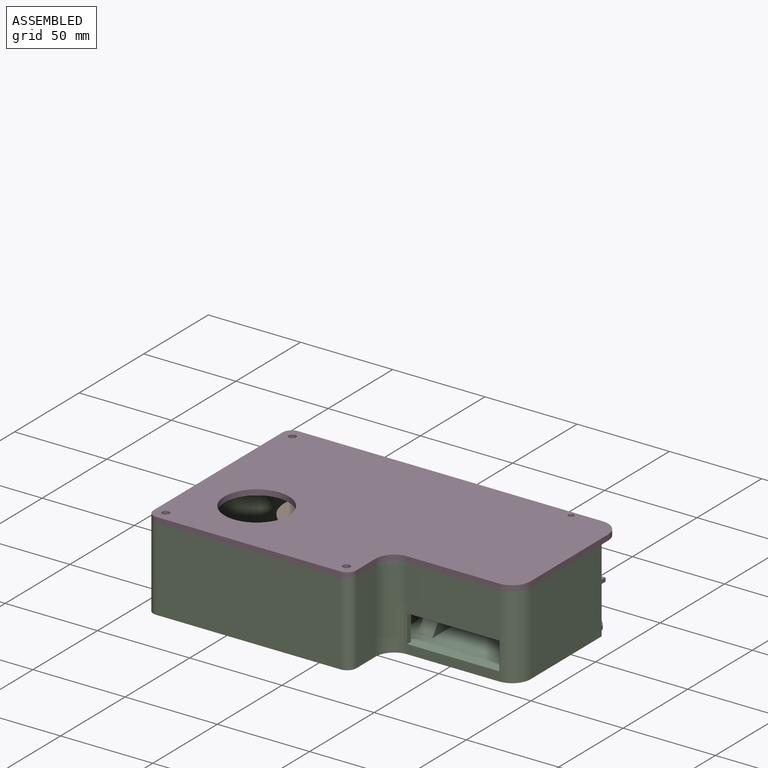
[diagram: assembled view]
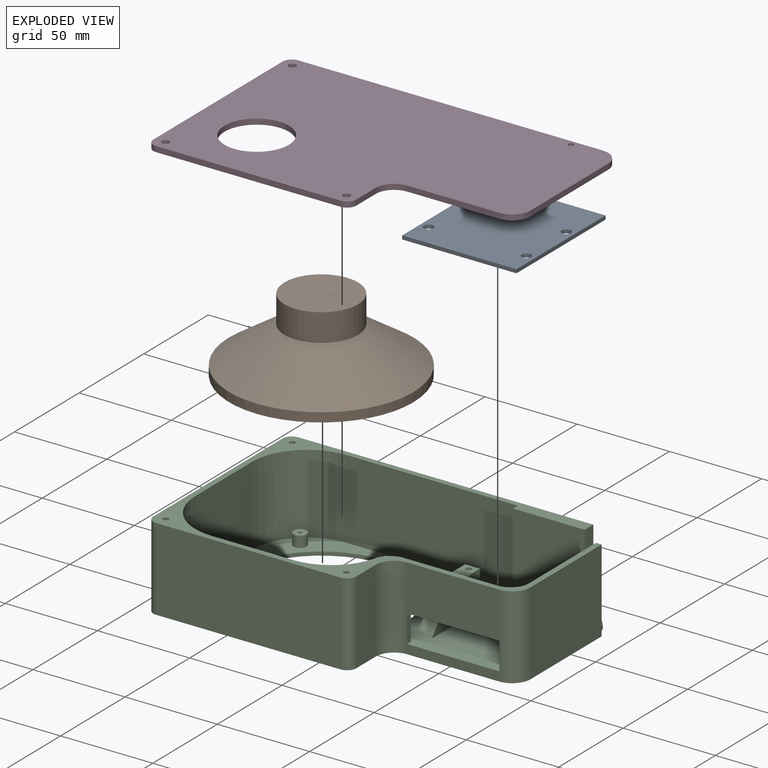
[diagram: exploded view]
GUIDED TOUR — MATED ASSEMBLY (Onshape document bf811bb87805f32e6dd0130b, AutoMate assembly bf811bb87805f32e6dd0130b_a34d25c10226012e30f8f99f_a27737cd62bdb31718ac18c3_default)

This assembly has 4 components, labeled P0..P3 below (a component is one placed occurrence of a part; the same part can appear more than once), held together by 3 mates. A mate is a constraint between two components; its type names the relative motion it leaves free:
  FASTENED — locks the two components together rigidly (no relative motion).
Axis/direction vectors are unit vectors and 'through' points are millimeter coordinates, both in the assembly's world frame.

MATES
  1. FASTENED "Fastened 2": P0 <-> P2, direction (0.000, 0.000, -1.000) through (128.85, 53.35, 10.94) mm
  2. FASTENED "Fastened 1": P1 <-> P2, direction (0.000, 0.000, -1.000) through (66.85, 27.85, -9.06) mm
  3. FASTENED "Fastened 3": P3 <-> P2, direction (0.000, 0.000, -1.000) through (16.85, 76.85, 33.94) mm

ASSEMBLY ORDER
  1. P2 — the base component [order verified]
  2. P1 [order verified]
  3. P0 [order verified]
  4. P3 [order verified]
Order-tag legend:
  [order verified] — this step's position reverses a verified removal order: the component was checked to insert without passing through the ones already placed.

Of the 4 components, 4 carry the full construction recipe — the FeatureScript program that regenerates the part's solid from scratch; the rest are supplied as boundary geometry only.
Each toured component is shown spotlighted twice — in the assembled view, then in the exploded view, where a leader line traces a displaced component back to its assembled socket (saturated green if recipe-attached, orange if geometry-only; every other component desaturated gray) — followed by its recipe or geometry summary and the mates that hold it.
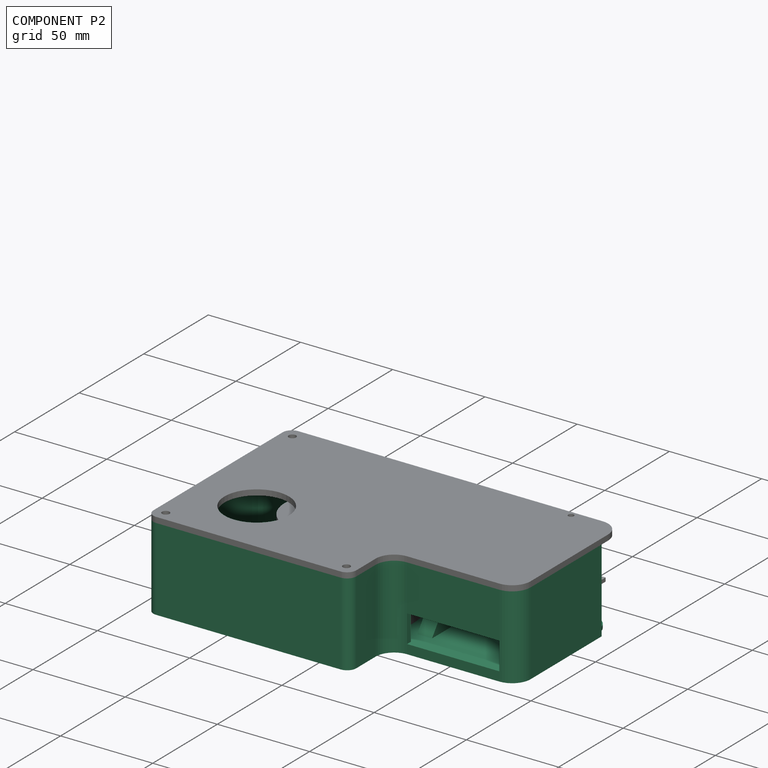
[diagram: component P2 — assembled]
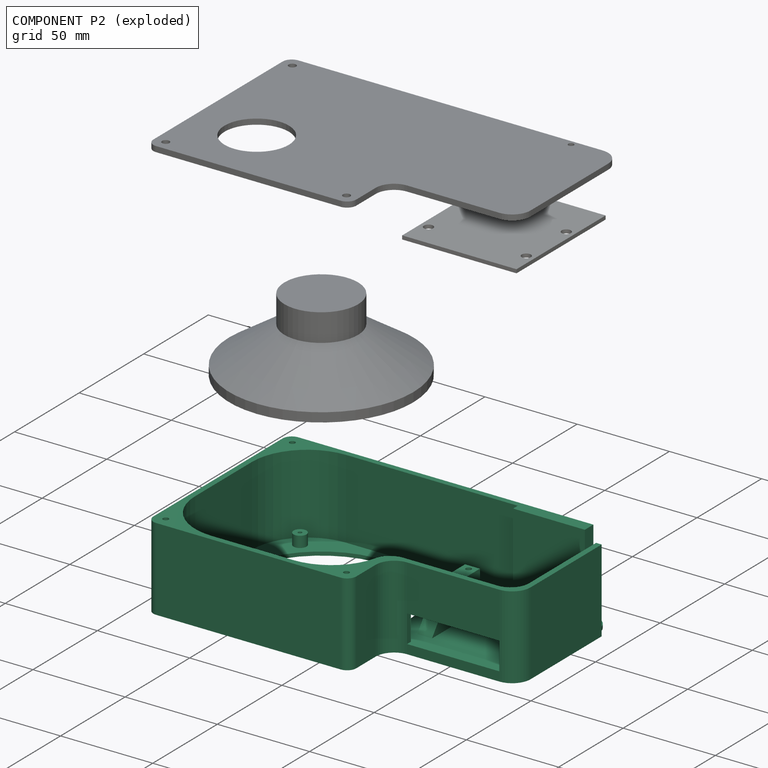
[diagram: component P2 — exploded]
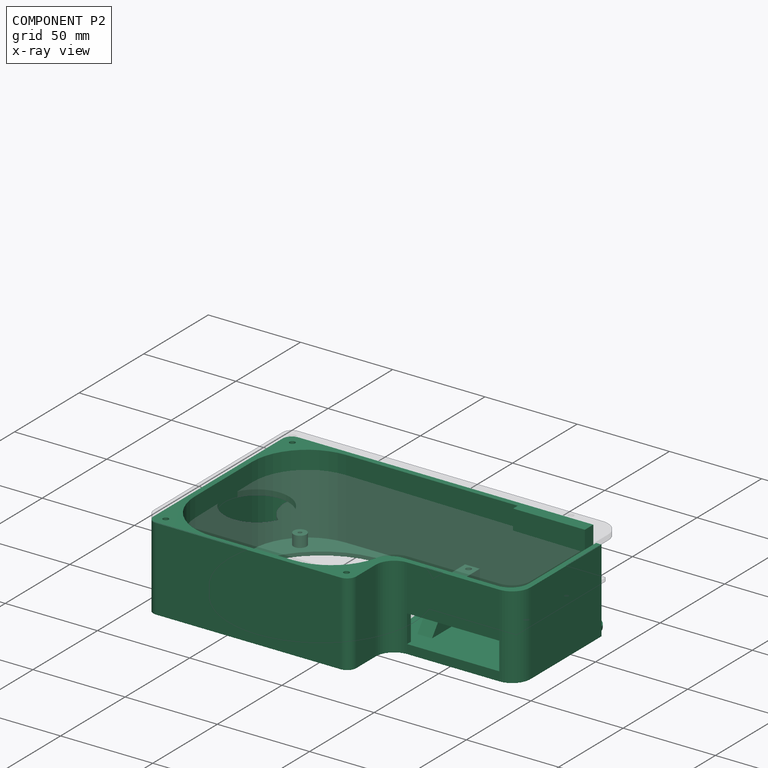
[diagram: component P2 — x-ray view]
COMPONENT P2 — recipe-attached (CADFS 00986160, mesh-verified: the recipe's output STEP matches this component's geometry to below the mesh-comparison resolution (tessellation chordal tolerance ~0.324 mm)).
Held by: FASTENED mate "Fastened 2" to P0; FASTENED mate "Fastened 1" to P1; FASTENED mate "Fastened 3" to P3.
Construction recipe (FeatureScript — the CAD program that rebuilds this solid; sketch coordinates are in the units given by the * unit suffixes, e.g. mm):

FeatureScript 1511;
import(path : "onshape/std/geometry.fs", version : "1511.0");
import(path : "onshape/std/common.fs", version : "1511.0");
const mm = millimeter;
const VERTEX = EntityType.VERTEX;
const EDGE = EntityType.EDGE;
const FACE = EntityType.FACE;
const BODY = EntityType.BODY;
function v(x, y){return vector(x, y);}
function OD(order){return orderDisambiguation(order);}
function OSD(set){return originalSetDisambiguation(set);}
function TD(topology){return topologyDisambiguation(topology);}
function TDD(query){return trueDependencyDisambiguation(query);}
function sQuery(a, b, c) {return sketchEntityQuery(a, b, c);}

annotation { "Feature Type Name" : "Feature", "Feature Type Description" : "" }
export const myFeature = defineFeature(function(context is Context, id is Id, definition is map)
    precondition{}
    {
        {
            var Q0;
            Q0=qCreatedBy(makeId("Top.planeOp"),FACE);
            var sketch = newSketch(context, id + "F0", { "sketchPlane" : qUnion([Q0])});
            skLineSegment(sketch, "E0.top", {"start": v(0, 110) * mm, "end": v(180, 110) * mm});
            skLineSegment(sketch, "E0.left", {"start": v(0, 0) * mm, "end": v(0, 110) * mm});
            skLineSegment(sketch, "E1.bottom", {"start": v(167, 83.5) * mm, "end": v(175, 83.5) * mm});
            skLineSegment(sketch, "E1.top", {"start": v(167, 46.5) * mm, "end": v(175, 46.5) * mm});
            skLineSegment(sketch, "E1.left", {"start": v(167, 83.5) * mm, "end": v(167, 46.5) * mm});
            skLineSegment(sketch, "E1.right", {"start": v(175, 83.5) * mm, "end": v(175, 46.5) * mm});
            skLineSegment(sketch, "E2.bottom", {"start": v(114, 83.5) * mm, "end": v(122, 83.5) * mm});
            skLineSegment(sketch, "E2.top", {"start": v(114, 46.5) * mm, "end": v(122, 46.5) * mm});
            skLineSegment(sketch, "E2.left", {"start": v(114, 83.5) * mm, "end": v(114, 46.5) * mm});
            skLineSegment(sketch, "E2.right", {"start": v(122, 83.5) * mm, "end": v(122, 46.5) * mm});
            skCircle(sketch, "E3", {"center": v(118, 80.5) * mm, "radius": 1.5 * mm});
            skCircle(sketch, "E4", {"center": v(118, 65.5) * mm, "radius": 1.5 * mm});
            skCircle(sketch, "E5", {"center": v(171, 80.5) * mm, "radius": 1.5 * mm});
            skCircle(sketch, "E6", {"center": v(171, 65.5) * mm, "radius": 1.5 * mm});
            skCircle(sketch, "E7", {"center": v(56, 55) * mm, "radius": 46.5 * mm});
            skLineSegment(sketch, "E8", {"start": v(180, 110) * mm, "end": v(180, 30) * mm});
            skLineSegment(sketch, "E9", {"start": v(180, 30) * mm, "end": v(110, 30) * mm});
            skLineSegment(sketch, "E10", {"start": v(110, 30) * mm, "end": v(110, 0) * mm});
            skLineSegment(sketch, "E11", {"start": v(110, 0) * mm, "end": v(0, 0) * mm});
            skLineSegment(sketch, "E12.top", {"start": v(110, 3) * mm, "end": v(0, 3) * mm});
            skLineSegment(sketch, "E12.left", {"start": v(110, 0) * mm, "end": v(110, 3) * mm});
            skLineSegment(sketch, "E12.right", {"start": v(0, 0) * mm, "end": v(0, 3) * mm});
            skLineSegment(sketch, "E13.bottom", {"start": v(0, 110) * mm, "end": v(3, 110) * mm});
            skLineSegment(sketch, "E13.top", {"start": v(0, 3) * mm, "end": v(3, 3) * mm});
            skLineSegment(sketch, "E13.left", {"start": v(0, 110) * mm, "end": v(0, 3) * mm});
            skLineSegment(sketch, "E13.right", {"start": v(3, 110) * mm, "end": v(3, 3) * mm});
            skLineSegment(sketch, "E14.bottom", {"start": v(3, 107) * mm, "end": v(180, 107) * mm});
            skLineSegment(sketch, "E14.top", {"start": v(3, 110) * mm, "end": v(180, 110) * mm});
            skLineSegment(sketch, "E14.left", {"start": v(3, 107) * mm, "end": v(3, 110) * mm});
            skLineSegment(sketch, "E14.right", {"start": v(180, 107) * mm, "end": v(180, 110) * mm});
            skLineSegment(sketch, "E15.bottom", {"start": v(180, 107) * mm, "end": v(177, 107) * mm});
            skLineSegment(sketch, "E15.top", {"start": v(180, 30) * mm, "end": v(177, 30) * mm});
            skLineSegment(sketch, "E15.left", {"start": v(180, 107) * mm, "end": v(180, 30) * mm});
            skLineSegment(sketch, "E15.right", {"start": v(177, 107) * mm, "end": v(177, 30) * mm});
            skLineSegment(sketch, "E16.bottom", {"start": v(110, 30) * mm, "end": v(107, 30) * mm});
            skLineSegment(sketch, "E16.top", {"start": v(110, 3) * mm, "end": v(107, 3) * mm});
            skLineSegment(sketch, "E16.left", {"start": v(110, 30) * mm, "end": v(110, 3) * mm});
            skLineSegment(sketch, "E16.right", {"start": v(107, 30) * mm, "end": v(107, 3) * mm});
            skLineSegment(sketch, "E17.bottom", {"start": v(177, 30) * mm, "end": v(107, 30) * mm});
            skLineSegment(sketch, "E17.top", {"start": v(177, 33) * mm, "end": v(107, 33) * mm});
            skLineSegment(sketch, "E17.left", {"start": v(177, 30) * mm, "end": v(177, 33) * mm});
            skLineSegment(sketch, "E17.right", {"start": v(107, 30) * mm, "end": v(107, 33) * mm});
            skLineSegment(sketch, "E18.bottom", {"start": v(177, 107) * mm, "end": v(180, 107) * mm});
            skLineSegment(sketch, "E18.top", {"start": v(177, 95) * mm, "end": v(180, 95) * mm});
            skLineSegment(sketch, "E18.left", {"start": v(177, 107) * mm, "end": v(177, 95) * mm});
            skLineSegment(sketch, "E18.right", {"start": v(180, 107) * mm, "end": v(180, 95) * mm});
            skLineSegment(sketch, "E19.bottom", {"start": v(180, 110) * mm, "end": v(165, 110) * mm});
            skLineSegment(sketch, "E19.top", {"start": v(180, 107) * mm, "end": v(165, 107) * mm});
            skLineSegment(sketch, "E19.left", {"start": v(180, 110) * mm, "end": v(180, 107) * mm});
            skLineSegment(sketch, "E19.right", {"start": v(165, 110) * mm, "end": v(165, 107) * mm});
            skCircle(sketch, "E20", {"center": v(17.5, 93.5) * mm, "radius": 3.5 * mm});
            skCircle(sketch, "E21", {"center": v(94.5, 93.5) * mm, "radius": 3.5 * mm});
            skCircle(sketch, "E22", {"center": v(94.5, 16.5) * mm, "radius": 3.5 * mm});
            skCircle(sketch, "E23", {"center": v(17.5, 16.5) * mm, "radius": 3.5 * mm});
            skLineSegment(sketch, "E24", {"start": v(56, 55) * mm, "end": v(106.17, 55) * mm, "construction": true});
            skLineSegment(sketch, "E25", {"start": v(56, 55) * mm, "end": v(4.12, 55) * mm, "construction": true});
            skLineSegment(sketch, "E26", {"start": v(56, 55) * mm, "end": v(56, 105.52) * mm, "construction": true});
            skLineSegment(sketch, "E27", {"start": v(56, 55) * mm, "end": v(56, 5.78) * mm, "construction": true});
            skCircle(sketch, "E28", {"center": v(94.5, 93.5) * mm, "radius": 1 * mm});
            skCircle(sketch, "E29", {"center": v(17.5, 93.5) * mm, "radius": 1 * mm});
            skCircle(sketch, "E30", {"center": v(17.5, 16.5) * mm, "radius": 1 * mm});
            skCircle(sketch, "E31", {"center": v(94.5, 16.5) * mm, "radius": 1 * mm});
            skCircle(sketch, "E32", {"center": v(107, 97) * mm, "radius": 5 * mm});
            skLineSegment(sketch, "E33.bottom", {"start": v(126.13, 107) * mm, "end": v(165, 107) * mm});
            skLineSegment(sketch, "E33.top", {"start": v(126.13, 103.38) * mm, "end": v(165, 103.38) * mm});
            skLineSegment(sketch, "E33.left", {"start": v(126.13, 107) * mm, "end": v(126.13, 103.38) * mm});
            skLineSegment(sketch, "E33.right", {"start": v(165, 107) * mm, "end": v(165, 103.38) * mm});
            skSolve(sketch);
        }
        {
            var Q0;
            Q0=makeQuery(id+"F0.imprint","IMPRINT",FACE,{"disambiguationData":[TD([[makeQuery(id+"F0.imprint","IMPRINT",EDGE,{"derivedFrom":sQuery(id+"F0.wireOp",EDGE,"E1.bottom")}),1.0]])]});
            extrude(context, id + "F1", {"entities" : qUnion([Q0]), "depth" : 2 * mm, "offsetDistance" : 25 * mm});
        }
        {
            var Q0;
            Q0=makeQuery(id+"F0.imprint","IMPRINT",FACE,{"disambiguationData":[TD([[makeQuery(id+"F0.imprint","IMPRINT",EDGE,{"derivedFrom":sQuery(id+"F0.wireOp",EDGE,"E2.bottom")}),-1.0]])]});
            var Q1;
            Q1=makeQuery(id+"F0.imprint","IMPRINT",FACE,{"disambiguationData":[TD([[makeQuery(id+"F0.imprint","IMPRINT",EDGE,{"derivedFrom":sQuery(id+"F0.wireOp",EDGE,"E1.bottom")}),-1.0]])]});
            extrude(context, id + "F2", {"entities" : qUnion([Q0, Q1]), "operationType" : NewBodyOperationType.ADD, "depth" : 22 * mm, "offsetDistance" : 25 * mm});
        }
        {
            var Q0;
            {var subQ0=sQuery(id+"F0.wireOp",EDGE,"E19.right");Q0=makeQuery(id+"F0.imprint","IMPRINT",FACE,{"disambiguationData":[TD([[makeQuery(id+"F0.imprint","IMPRINT",EDGE,{"derivedFrom":subQ0}),-1.0]])]});}
            var Q1;
            {var subQ0=sQuery(id+"F0.wireOp",EDGE,"E13.right");var subQ6=sQuery(id+"F0.wireOp",EDGE,"E0.top");var subQ8=makeQuery(id+"F0.imprint","INTERSECT",VERTEX,{"derivedFrom":[subQ6,subQ0]});Q1=makeQuery(id+"F0.imprint","IMPRINT",FACE,{"disambiguationData":[TD([[makeQuery(id+"F0.imprint","IMPRINT",EDGE,{"disambiguationData":[TD([[subQ8,1.0]])],"derivedFrom":subQ6}),-1.0]])]});}
            var Q2;
            {var subQ5=sQuery(id+"F0.wireOp",EDGE,"E11");Q2=makeQuery(id+"F0.imprint","IMPRINT",FACE,{"disambiguationData":[TD([[makeQuery(id+"F0.imprint","IMPRINT",EDGE,{"derivedFrom":subQ5}),-1.0]])]});}
            var Q3;
            Q3=makeQuery(id+"F0.imprint","IMPRINT",FACE,{"disambiguationData":[TD([[makeQuery(id+"F0.imprint","IMPRINT",EDGE,{"derivedFrom":sQuery(id+"F0.wireOp",EDGE,"E15.bottom")}),1.0]])]});
            var Q4;
            Q4=makeQuery(id+"F0.imprint","IMPRINT",FACE,{"disambiguationData":[TD([[makeQuery(id+"F0.imprint","IMPRINT",EDGE,{"derivedFrom":sQuery(id+"F0.wireOp",EDGE,"E16.bottom")}),1.0]])]});
            var Q5;
            {var subQ0=sQuery(id+"F0.wireOp",EDGE,"E16.bottom");Q5=makeQuery(id+"F0.imprint","IMPRINT",FACE,{"disambiguationData":[TD([[makeQuery(id+"F0.imprint","IMPRINT",EDGE,{"derivedFrom":subQ0}),1.0]])]});}
            var Q6;
            {var subQ1=sQuery(id+"F0.wireOp",EDGE,"E16.bottom");Q6=makeQuery(id+"F0.imprint","IMPRINT",FACE,{"disambiguationData":[TD([[makeQuery(id+"F0.imprint","IMPRINT",EDGE,{"derivedFrom":subQ1}),-1.0]])]});}
            var Q7;
            {var subQ0=sQuery(id+"F0.wireOp",EDGE,"E18.top");Q7=makeQuery(id+"F0.imprint","IMPRINT",FACE,{"disambiguationData":[TD([[makeQuery(id+"F0.imprint","IMPRINT",EDGE,{"derivedFrom":subQ0}),-1.0]])]});}
            var Q8;
            Q8=makeQuery(id+"F0.imprint","IMPRINT",FACE,{"disambiguationData":[TD([[makeQuery(id+"F0.imprint","IMPRINT",EDGE,{"derivedFrom":sQuery(id+"F0.wireOp",EDGE,"E33.top")}),1.0]])]});
            extrude(context, id + "F3", {"entities" : qUnion([Q0, Q1, Q2, Q3, Q4, Q5, Q6, Q7, Q8]), "operationType" : NewBodyOperationType.ADD, "depth" : 45 * mm, "offsetDistance" : 25 * mm});
        }
        {
            var Q0;
            Q0=makeQuery(id+"F3.opExtrude","SWEPT_EDGE",EDGE,{"disambiguationData":[OSD([sQuery(id+"F0.wireOp",EDGE,"E13.right"),sQuery(id+"F0.wireOp",EDGE,"E14.bottom")])]});
            var Q1;
            Q1=makeQuery(id+"F3.opExtrude","SWEPT_EDGE",EDGE,{"disambiguationData":[OSD([sQuery(id+"F0.wireOp",EDGE,"E12.top"),sQuery(id+"F0.wireOp",EDGE,"E13.right")])]});
            var Q2;
            Q2=makeQuery(id+"F3.opExtrude","SWEPT_EDGE",EDGE,{"disambiguationData":[OSD([sQuery(id+"F0.wireOp",EDGE,"E12.top"),sQuery(id+"F0.wireOp",EDGE,"E16.right")])]});
            fillet(context, id + "F4", {"entities" : qUnion([Q0, Q1, Q2]), "radius" : 30 * mm, "tangentPropagation" : true, "allowEdgeOverflow" : false});
        }
        {
            var Q0;
            Q0=makeQuery(id+"F3.opExtrude","SWEPT_EDGE",EDGE,{"disambiguationData":[OSD([sQuery(id+"F0.wireOp",EDGE,"E15.right"),sQuery(id+"F0.wireOp",EDGE,"E17.top")])]});
            var Q1;
            Q1=makeQuery(id+"F3.opExtrude","SWEPT_EDGE",EDGE,{"disambiguationData":[OSD([sQuery(id+"F0.wireOp",EDGE,"E8"),sQuery(id+"F0.wireOp",EDGE,"E9")])]});
            var Q2;
            Q2=makeQuery(id+"F3.opExtrude","SWEPT_EDGE",EDGE,{"disambiguationData":[OSD([sQuery(id+"F0.wireOp",EDGE,"E9"),sQuery(id+"F0.wireOp",EDGE,"E10"),sQuery(id+"F0.wireOp",EDGE,"E16.bottom")])]});
            var Q3;
            Q3=makeQuery(id+"F3.opExtrude","SWEPT_EDGE",EDGE,{"disambiguationData":[OSD([sQuery(id+"F0.wireOp",EDGE,"E17.top"),sQuery(id+"F0.wireOp",EDGE,"E17.right")])]});
            var Q4;
            Q4=makeQuery(id+"F1.opExtrude","SWEPT_EDGE",EDGE,{"disambiguationData":[OSD([sQuery(id+"F0.wireOp",EDGE,"E14.bottom"),sQuery(id+"F0.wireOp",EDGE,"E15.right")])]});
            var Q5;
            Q5=makeQuery(id+"F4.opFillet","BLEND_EDGE",EDGE,{"blendedFrom":[makeQuery(id+"F3.opExtrude","SWEPT_EDGE",EDGE,{"disambiguationData":[OSD([sQuery(id+"F0.wireOp",EDGE,"E12.top"),sQuery(id+"F0.wireOp",EDGE,"E16.right")])]}),makeQuery(id+"F3.opExtrude","SWEPT_FACE",FACE,{"disambiguationData":[OSD([sQuery(id+"F0.wireOp",EDGE,"E17.top")])]})],"blendedInto":[makeQuery(id+"F3.opExtrude","SWEPT_FACE",FACE,{"disambiguationData":[OSD([sQuery(id+"F0.wireOp",EDGE,"E17.top")])]})]});
            fillet(context, id + "F5", {"entities" : qUnion([Q0, Q1, Q2, Q3, Q4, Q5]), "radius" : 10 * mm, "tangentPropagation" : true, "allowEdgeOverflow" : false});
        }
        {
            var Q0;
            Q0=makeQuery(id+"F3.opExtrude","SWEPT_FACE",FACE,{"disambiguationData":[OSD([sQuery(id+"F0.wireOp",EDGE,"E9")])]});
            var sketch = newSketch(context, id + "F6", { "sketchPlane" : qUnion([Q0])});
            skLineSegment(sketch, "E34.bottom", {"start": v(120, 20) * mm, "end": v(170, 20) * mm});
            skLineSegment(sketch, "E34.top", {"start": v(120, 5) * mm, "end": v(170, 5) * mm});
            skLineSegment(sketch, "E34.left", {"start": v(120, 20) * mm, "end": v(120, 5) * mm});
            skLineSegment(sketch, "E34.right", {"start": v(170, 20) * mm, "end": v(170, 5) * mm});
            skSolve(sketch);
        }
        {
            var Q0;
            Q0=makeQuery(id+"F6.imprint","IMPRINT",FACE,{"disambiguationData":[TD([[makeQuery(id+"F6.imprint","IMPRINT",EDGE,{"derivedFrom":sQuery(id+"F6.wireOp",EDGE,"E34.bottom")}),-1.0]])]});
            extrude(context, id + "F7", {"entities" : qUnion([Q0]), "operationType" : NewBodyOperationType.REMOVE, "oppositeDirection" : true, "depth" : 5 * mm, "offsetDistance" : 25 * mm});
        }
        {
            var Q0;
            Q0=makeQuery(id+"F3.opExtrude","SWEPT_EDGE",EDGE,{"disambiguationData":[OSD([sQuery(id+"F0.wireOp",EDGE,"E10"),sQuery(id+"F0.wireOp",EDGE,"E11")])]});
            var Q1;
            Q1=makeQuery(id+"F3.opExtrude","SWEPT_EDGE",EDGE,{"disambiguationData":[OSD([sQuery(id+"F0.wireOp",EDGE,"E0.left"),sQuery(id+"F0.wireOp",EDGE,"E11")])]});
            var Q2;
            Q2=makeQuery(id+"F3.opExtrude","SWEPT_EDGE",EDGE,{"disambiguationData":[OSD([sQuery(id+"F0.wireOp",EDGE,"E0.top"),sQuery(id+"F0.wireOp",EDGE,"E0.left")])]});
            fillet(context, id + "F8", {"entities" : qUnion([Q0, Q1, Q2]), "radius" : 5 * mm, "tangentPropagation" : true, "allowEdgeOverflow" : false});
        }
        {
            var Q0;
            Q0=makeQuery(id+"F0.imprint","IMPRINT",FACE,{"disambiguationData":[TD([[makeQuery(id+"F0.imprint","IMPRINT",EDGE,{"derivedFrom":sQuery(id+"F0.wireOp",EDGE,"E21")}),1.0]])]});
            var Q1;
            Q1=makeQuery(id+"F0.imprint","IMPRINT",FACE,{"disambiguationData":[TD([[makeQuery(id+"F0.imprint","IMPRINT",EDGE,{"derivedFrom":sQuery(id+"F0.wireOp",EDGE,"E20")}),1.0]])]});
            var Q2;
            Q2=makeQuery(id+"F0.imprint","IMPRINT",FACE,{"disambiguationData":[TD([[makeQuery(id+"F0.imprint","IMPRINT",EDGE,{"derivedFrom":sQuery(id+"F0.wireOp",EDGE,"E23")}),1.0]])]});
            var Q3;
            Q3=makeQuery(id+"F0.imprint","IMPRINT",FACE,{"disambiguationData":[TD([[makeQuery(id+"F0.imprint","IMPRINT",EDGE,{"derivedFrom":sQuery(id+"F0.wireOp",EDGE,"E22")}),1.0]])]});
            extrude(context, id + "F9", {"entities" : qUnion([Q0, Q1, Q2, Q3]), "operationType" : NewBodyOperationType.ADD, "depth" : 8 * mm, "offsetDistance" : 25 * mm});
        }
        {
            var Q0;
            Q0=makeQuery(id+"F3.opExtrude","CAP_FACE",FACE,{"disambiguationData":[OSD([sQuery(id+"F0.wireOp",EDGE,"E0.top"),sQuery(id+"F0.wireOp",EDGE,"E0.left"),sQuery(id+"F0.wireOp",EDGE,"E8"),sQuery(id+"F0.wireOp",EDGE,"E9"),sQuery(id+"F0.wireOp",EDGE,"E10"),sQuery(id+"F0.wireOp",EDGE,"E11"),sQuery(id+"F0.wireOp",EDGE,"E12.top"),sQuery(id+"F0.wireOp",EDGE,"E13.right"),sQuery(id+"F0.wireOp",EDGE,"E14.bottom"),sQuery(id+"F0.wireOp",EDGE,"E15.right"),sQuery(id+"F0.wireOp",EDGE,"E16.right"),sQuery(id+"F0.wireOp",EDGE,"E17.top"),sQuery(id+"F0.wireOp",EDGE,"E17.right"),sQuery(id+"F0.wireOp",EDGE,"E18.top"),sQuery(id+"F0.wireOp",EDGE,"E19.right"),sQuery(id+"F0.wireOp",EDGE,"E33.top"),sQuery(id+"F0.wireOp",EDGE,"E33.left"),sQuery(id+"F0.wireOp",EDGE,"E33.right")])],"isStart":false});
            var sketch = newSketch(context, id + "F10", { "sketchPlane" : qUnion([Q0])});
            skCircle(sketch, "E35", {"center": v(6, 104) * mm, "radius": 1.5 * mm});
            skCircle(sketch, "E36", {"center": v(6, 6) * mm, "radius": 1.5 * mm});
            skCircle(sketch, "E37", {"center": v(104, 6) * mm, "radius": 1.5 * mm});
            skLineSegment(sketch, "E38.bottom", {"start": v(165, 110) * mm, "end": v(180, 110) * mm});
            skLineSegment(sketch, "E38.top", {"start": v(165, 95) * mm, "end": v(180, 95) * mm});
            skLineSegment(sketch, "E38.left", {"start": v(165, 110) * mm, "end": v(165, 95) * mm});
            skLineSegment(sketch, "E38.right", {"start": v(180, 110) * mm, "end": v(180, 95) * mm});
            skSolve(sketch);
        }
        {
            var Q0;
            Q0=makeQuery(id+"F10.imprint","IMPRINT",FACE,{"disambiguationData":[TD([[makeQuery(id+"F10.imprint","IMPRINT",EDGE,{"derivedFrom":sQuery(id+"F10.wireOp",EDGE,"E35")}),1.0]])]});
            var Q1;
            Q1=makeQuery(id+"F10.imprint","IMPRINT",FACE,{"disambiguationData":[TD([[makeQuery(id+"F10.imprint","IMPRINT",EDGE,{"derivedFrom":sQuery(id+"F10.wireOp",EDGE,"E36")}),1.0]])]});
            var Q2;
            Q2=makeQuery(id+"F10.imprint","IMPRINT",FACE,{"disambiguationData":[TD([[makeQuery(id+"F10.imprint","IMPRINT",EDGE,{"derivedFrom":sQuery(id+"F10.wireOp",EDGE,"E37")}),1.0]])]});
            extrude(context, id + "F11", {"entities" : qUnion([Q0, Q1, Q2]), "operationType" : NewBodyOperationType.REMOVE, "oppositeDirection" : true, "depth" : 25 * mm, "offsetDistance" : 25 * mm});
        }
        {
            var Q0;
            Q0=makeQuery(id+"F2.opExtrude","CAP_EDGE",EDGE,{"disambiguationData":[OSD([sQuery(id+"F0.wireOp",EDGE,"E2.top")])],"isStart":false});
            var Q1;
            Q1=makeQuery(id+"F2.opExtrude","CAP_EDGE",EDGE,{"disambiguationData":[OSD([sQuery(id+"F0.wireOp",EDGE,"E1.top")])],"isStart":false});
            chamfer(context, id + "F12", {"entities" : qUnion([Q0, Q1]), "chamferType" : ChamferType.TWO_OFFSETS, "width1" : 15 * mm, "oppositeDirection" : false, "width2" : 20 * mm, "tangentPropagation" : true});
        }
    });
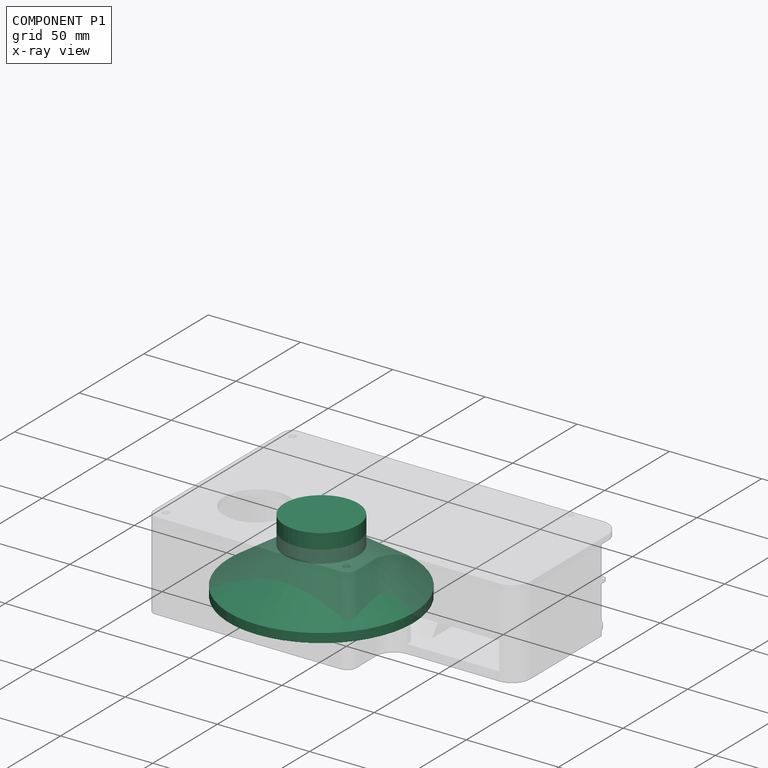
[diagram: component P1 — x-ray view]
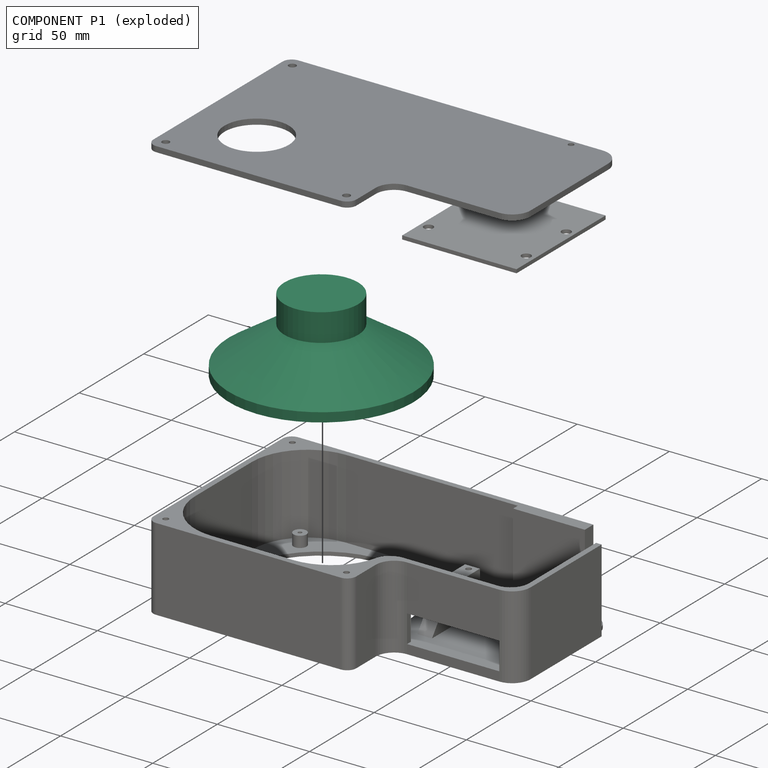
[diagram: component P1 — exploded]
COMPONENT P1 — recipe-attached (CADFS 00986162, mesh-verified: the recipe's output STEP matches this component's geometry to below the mesh-comparison resolution (tessellation chordal tolerance ~0.22 mm)).
Held by: FASTENED mate "Fastened 1" to P2.
Construction recipe (FeatureScript — the CAD program that rebuilds this solid; sketch coordinates are in the units given by the * unit suffixes, e.g. mm):

FeatureScript 1511;
import(path : "onshape/std/geometry.fs", version : "1511.0");
import(path : "onshape/std/common.fs", version : "1511.0");
const mm = millimeter;
const VERTEX = EntityType.VERTEX;
const EDGE = EntityType.EDGE;
const FACE = EntityType.FACE;
const BODY = EntityType.BODY;
function v(x, y){return vector(x, y);}
function OD(order){return orderDisambiguation(order);}
function OSD(set){return originalSetDisambiguation(set);}
function TD(topology){return topologyDisambiguation(topology);}
function TDD(query){return trueDependencyDisambiguation(query);}
function sQuery(a, b, c) {return sketchEntityQuery(a, b, c);}

annotation { "Feature Type Name" : "Feature", "Feature Type Description" : "" }
export const myFeature = defineFeature(function(context is Context, id is Id, definition is map)
    precondition{}
    {
        {
            var Q0;
            Q0=qCreatedBy(makeId("Top.planeOp"),FACE);
            var sketch = newSketch(context, id + "F0", { "sketchPlane" : qUnion([Q0])});
            skCircle(sketch, "E0", {"center": v(0, 0) * mm, "radius": 50 * mm});
            skSolve(sketch);
        }
        {
            var Q0;
            Q0=makeQuery(id+"F0.imprint","IMPRINT",FACE,{"disambiguationData":[TD([[makeQuery(id+"F0.imprint","IMPRINT",EDGE,{"derivedFrom":sQuery(id+"F0.wireOp",EDGE,"E0")}),1.0]])]});
            cPlane(context, id + "F1", {"entities" : qUnion([Q0]), "cplaneType" : CPlaneType.OFFSET, "offset" : 20 * mm, "width" : 150 * mm, "height" : 150 * mm});
        }
        {
            var Q0;
            Q0=qCreatedBy(id+"F1.planeOp",FACE);
            var sketch = newSketch(context, id + "F2", { "sketchPlane" : qUnion([Q0])});
            skCircle(sketch, "E1", {"center": v(0, 0) * mm, "radius": 20 * mm});
            skSolve(sketch);
        }
        {
            var Q0;
            Q0=makeQuery(id+"F0.imprint","IMPRINT",FACE,{"disambiguationData":[TD([[makeQuery(id+"F0.imprint","IMPRINT",EDGE,{"derivedFrom":sQuery(id+"F0.wireOp",EDGE,"E0")}),1.0]])]});
            var Q1;
            Q1=makeQuery(id+"F2.imprint","IMPRINT",FACE,{"disambiguationData":[TD([[makeQuery(id+"F2.imprint","IMPRINT",EDGE,{"derivedFrom":sQuery(id+"F2.wireOp",EDGE,"E1")}),1.0]])]});
            loft(context, id + "F3", {"sheetProfilesArray" : [{ "sheetProfileEntities" : qUnion([Q0]) }, { "sheetProfileEntities" : qUnion([Q1]) }]});
        }
        {
            var Q0;
            Q0=makeQuery(id+"F3.opLoft","CAP_FACE",FACE,{"disambiguationData":[OSD([makeQuery(id+"F2.imprint","IMPRINT",FACE,{"disambiguationData":[TD([[makeQuery(id+"F2.imprint","IMPRINT",EDGE,{"derivedFrom":sQuery(id+"F2.wireOp",EDGE,"E1")}),1.0]])]})])],"isStart":true});
            extrude(context, id + "F4", {"entities" : qUnion([Q0]), "operationType" : NewBodyOperationType.ADD, "depth" : 15 * mm, "offsetDistance" : 25 * mm});
        }
        {
            var Q0;
            Q0=makeQuery(id+"F3.opLoft","CAP_FACE",FACE,{"disambiguationData":[OSD([makeQuery(id+"F0.imprint","IMPRINT",FACE,{"disambiguationData":[TD([[makeQuery(id+"F0.imprint","IMPRINT",EDGE,{"derivedFrom":sQuery(id+"F0.wireOp",EDGE,"E0")}),1.0]])]})])],"isStart":true});
            extrude(context, id + "F5", {"entities" : qUnion([Q0]), "operationType" : NewBodyOperationType.ADD, "depth" : 5 * mm, "offsetDistance" : 25 * mm});
        }
    });
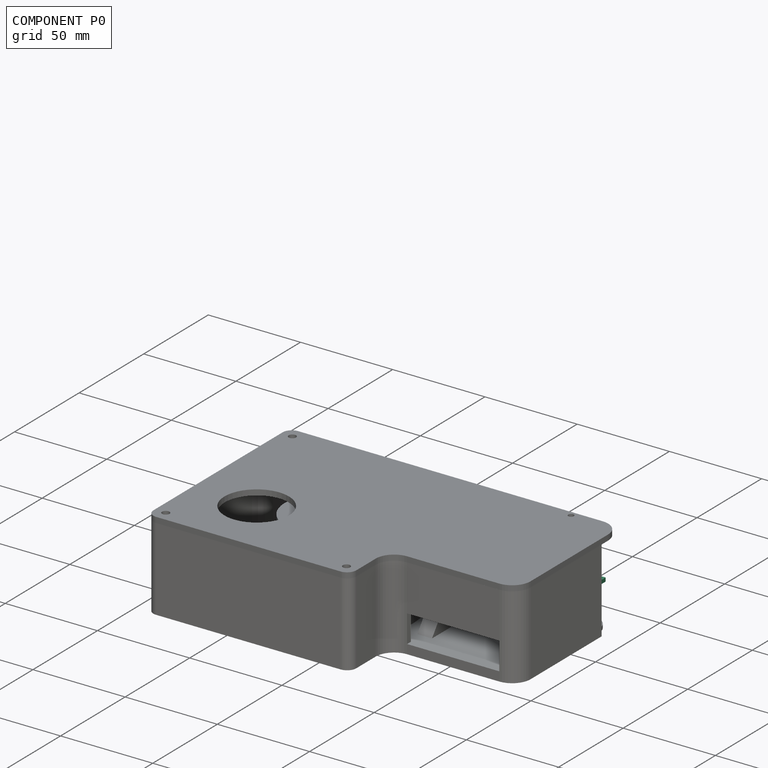
[diagram: component P0 — assembled]
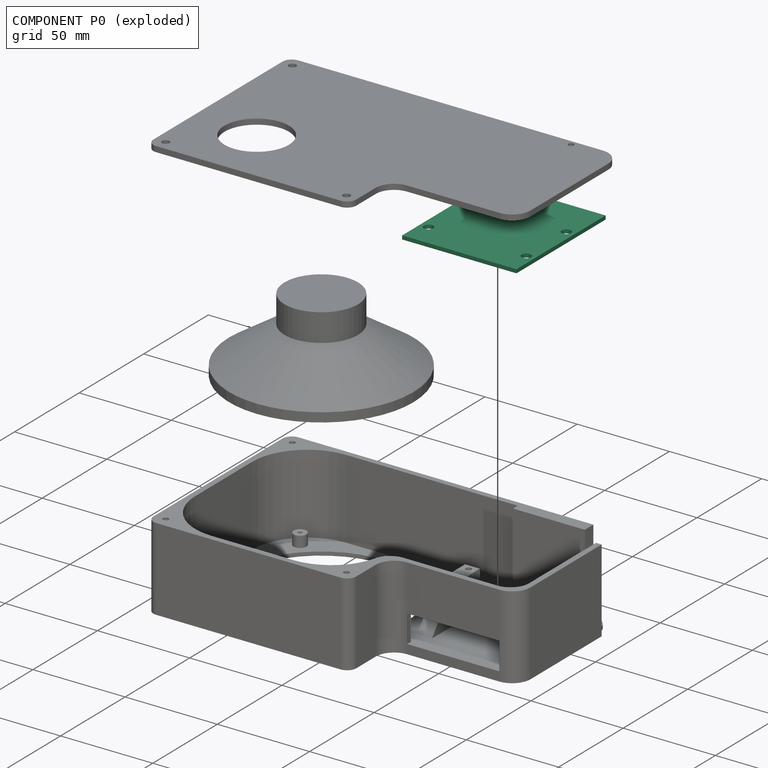
[diagram: component P0 — exploded]
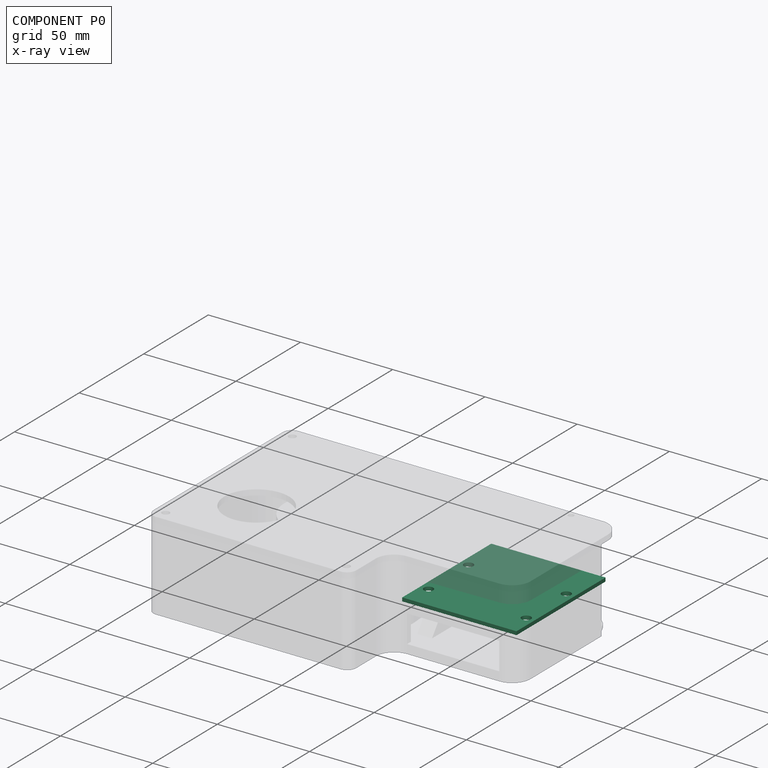
[diagram: component P0 — x-ray view]
COMPONENT P0 — recipe-attached (CADFS 00986159, mesh-verified: the recipe's output STEP matches this component's geometry to below the mesh-comparison resolution (tessellation chordal tolerance ~0.139 mm)).
Held by: FASTENED mate "Fastened 2" to P2.
Construction recipe (FeatureScript — the CAD program that rebuilds this solid; sketch coordinates are in the units given by the * unit suffixes, e.g. mm):

FeatureScript 1511;
import(path : "onshape/std/geometry.fs", version : "1511.0");
import(path : "onshape/std/common.fs", version : "1511.0");
const mm = millimeter;
const VERTEX = EntityType.VERTEX;
const EDGE = EntityType.EDGE;
const FACE = EntityType.FACE;
const BODY = EntityType.BODY;
function v(x, y){return vector(x, y);}
function OD(order){return orderDisambiguation(order);}
function OSD(set){return originalSetDisambiguation(set);}
function TD(topology){return topologyDisambiguation(topology);}
function TDD(query){return trueDependencyDisambiguation(query);}
function sQuery(a, b, c) {return sketchEntityQuery(a, b, c);}

annotation { "Feature Type Name" : "Feature", "Feature Type Description" : "" }
export const myFeature = defineFeature(function(context is Context, id is Id, definition is map)
    precondition{}
    {
        {
            var Q0;
            Q0=qCreatedBy(makeId("Top.planeOp"),FACE);
            var sketch = newSketch(context, id + "F0", { "sketchPlane" : qUnion([Q0])});
            skLineSegment(sketch, "E0.bottom", {"start": v(0, 0) * mm, "end": v(62, 0) * mm});
            skLineSegment(sketch, "E0.top", {"start": v(0, 69) * mm, "end": v(62, 69) * mm});
            skLineSegment(sketch, "E0.left", {"start": v(0, 0) * mm, "end": v(0, 69) * mm});
            skLineSegment(sketch, "E0.right", {"start": v(62, 0) * mm, "end": v(62, 69) * mm});
            skCircle(sketch, "E1", {"center": v(4.5, 14) * mm, "radius": 2.5 * mm});
            skCircle(sketch, "E2", {"center": v(4.5, 45) * mm, "radius": 2.5 * mm});
            skCircle(sketch, "E3", {"center": v(57.5, 45) * mm, "radius": 2.5 * mm});
            skCircle(sketch, "E4", {"center": v(57.5, 14) * mm, "radius": 2.5 * mm});
            skSolve(sketch);
        }
        {
            var Q0;
            Q0=makeQuery(id+"F0.imprint","IMPRINT",FACE,{"disambiguationData":[TD([[makeQuery(id+"F0.imprint","IMPRINT",EDGE,{"derivedFrom":sQuery(id+"F0.wireOp",EDGE,"E0.bottom")}),1.0]])]});
            extrude(context, id + "F1", {"entities" : qUnion([Q0]), "depth" : 2 * mm, "offsetDistance" : 25 * mm});
        }
    });
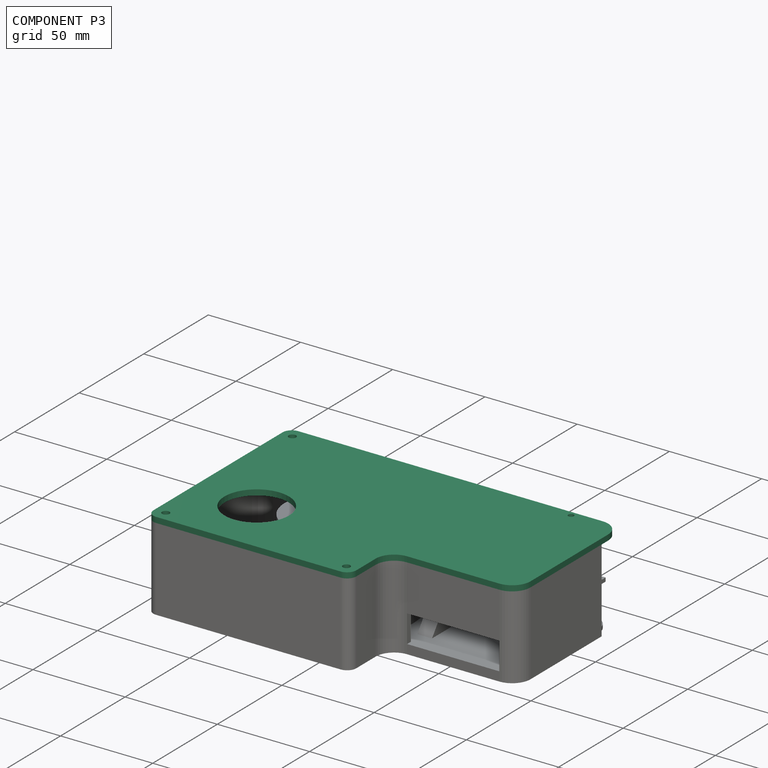
[diagram: component P3 — assembled]
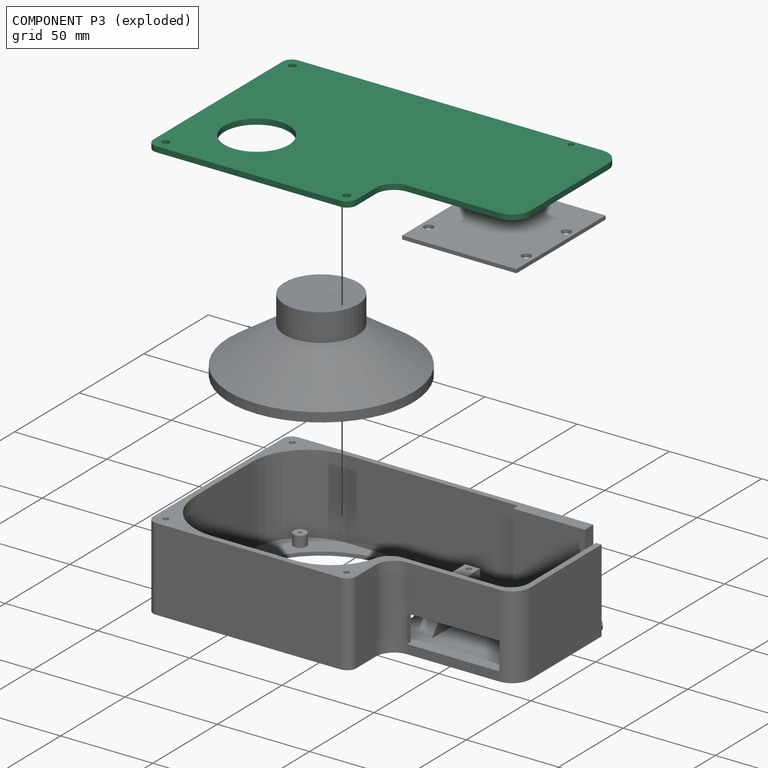
[diagram: component P3 — exploded]
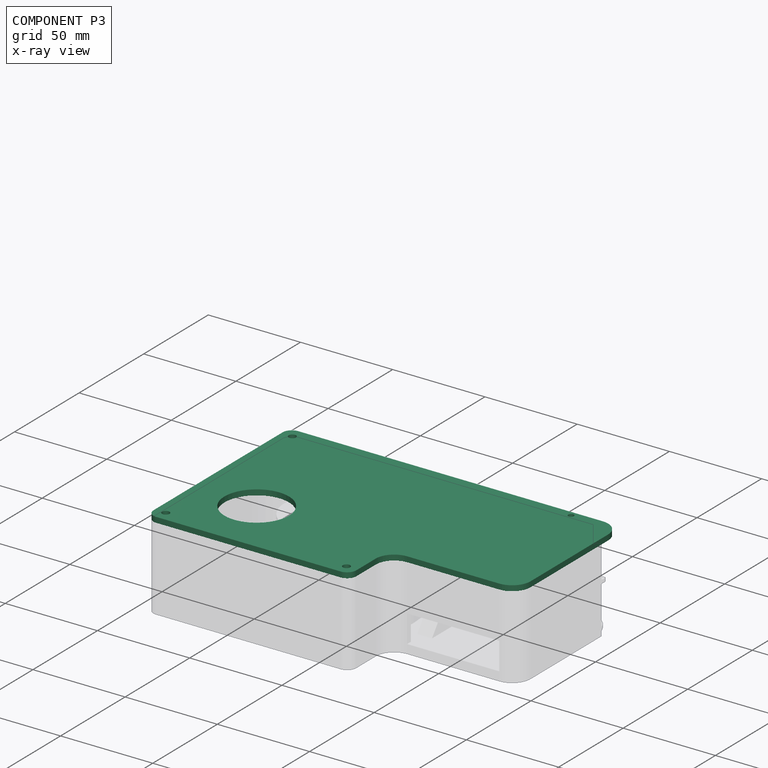
[diagram: component P3 — x-ray view]
COMPONENT P3 — recipe-attached (CADFS 00986161, mesh-verified: the recipe's output STEP matches this component's geometry to below the mesh-comparison resolution (tessellation chordal tolerance ~0.316 mm)).
Held by: FASTENED mate "Fastened 3" to P2.
Construction recipe (FeatureScript — the CAD program that rebuilds this solid; sketch coordinates are in the units given by the * unit suffixes, e.g. mm):

FeatureScript 1511;
import(path : "onshape/std/geometry.fs", version : "1511.0");
import(path : "onshape/std/common.fs", version : "1511.0");
const mm = millimeter;
const VERTEX = EntityType.VERTEX;
const EDGE = EntityType.EDGE;
const FACE = EntityType.FACE;
const BODY = EntityType.BODY;
function v(x, y){return vector(x, y);}
function OD(order){return orderDisambiguation(order);}
function OSD(set){return originalSetDisambiguation(set);}
function TD(topology){return topologyDisambiguation(topology);}
function TDD(query){return trueDependencyDisambiguation(query);}
function sQuery(a, b, c) {return sketchEntityQuery(a, b, c);}

annotation { "Feature Type Name" : "Feature", "Feature Type Description" : "" }
export const myFeature = defineFeature(function(context is Context, id is Id, definition is map)
    precondition{}
    {
        {
            var Q0;
            Q0=qCreatedBy(makeId("Top.planeOp"),FACE);
            var sketch = newSketch(context, id + "F0", { "sketchPlane" : qUnion([Q0])});
            skLineSegment(sketch, "E0.top", {"start": v(0, 110) * mm, "end": v(180, 110) * mm});
            skLineSegment(sketch, "E0.left", {"start": v(0, 0) * mm, "end": v(0, 110) * mm});
            skLineSegment(sketch, "E1", {"start": v(180, 110) * mm, "end": v(180, 30) * mm});
            skLineSegment(sketch, "E2", {"start": v(180, 30) * mm, "end": v(110, 30) * mm});
            skLineSegment(sketch, "E3", {"start": v(110, 30) * mm, "end": v(110, 0) * mm});
            skLineSegment(sketch, "E4", {"start": v(110, 0) * mm, "end": v(0, 0) * mm});
            skCircle(sketch, "E5", {"center": v(6, 104) * mm, "radius": 2 * mm});
            skCircle(sketch, "E6", {"center": v(6, 6) * mm, "radius": 2 * mm});
            skCircle(sketch, "E7", {"center": v(104, 6) * mm, "radius": 2 * mm});
            skCircle(sketch, "E8", {"center": v(155, 107) * mm, "radius": 1.5 * mm});
            skCircle(sketch, "E9", {"center": v(35, 35) * mm, "radius": 17.5 * mm});
            skSolve(sketch);
        }
        {
            var Q0;
            Q0=makeQuery(id+"F0.imprint","IMPRINT",FACE,{"disambiguationData":[TD([[makeQuery(id+"F0.imprint","IMPRINT",EDGE,{"derivedFrom":sQuery(id+"F0.wireOp",EDGE,"E0.top")}),-1.0]])]});
            extrude(context, id + "F1", {"entities" : qUnion([Q0]), "depth" : 3 * mm, "offsetDistance" : 25 * mm});
        }
        {
            var Q0;
            Q0=makeQuery(id+"F1.opExtrude","SWEPT_EDGE",EDGE,{"disambiguationData":[OSD([sQuery(id+"F0.wireOp",EDGE,"E2"),sQuery(id+"F0.wireOp",EDGE,"E3")])]});
            var Q1;
            Q1=makeQuery(id+"F1.opExtrude","SWEPT_EDGE",EDGE,{"disambiguationData":[OSD([sQuery(id+"F0.wireOp",EDGE,"E1"),sQuery(id+"F0.wireOp",EDGE,"E2")])]});
            var Q2;
            Q2=makeQuery(id+"F1.opExtrude","SWEPT_EDGE",EDGE,{"disambiguationData":[OSD([sQuery(id+"F0.wireOp",EDGE,"E0.top"),sQuery(id+"F0.wireOp",EDGE,"E1")])]});
            fillet(context, id + "F2", {"entities" : qUnion([Q0, Q1, Q2]), "radius" : 10 * mm, "tangentPropagation" : true, "allowEdgeOverflow" : false});
        }
        {
            var Q0;
            Q0=makeQuery(id+"F1.opExtrude","SWEPT_EDGE",EDGE,{"disambiguationData":[OSD([sQuery(id+"F0.wireOp",EDGE,"E3"),sQuery(id+"F0.wireOp",EDGE,"E4")])]});
            var Q1;
            Q1=makeQuery(id+"F1.opExtrude","SWEPT_EDGE",EDGE,{"disambiguationData":[OSD([sQuery(id+"F0.wireOp",EDGE,"E0.left"),sQuery(id+"F0.wireOp",EDGE,"E4")])]});
            var Q2;
            Q2=makeQuery(id+"F1.opExtrude","SWEPT_EDGE",EDGE,{"disambiguationData":[OSD([sQuery(id+"F0.wireOp",EDGE,"E0.top"),sQuery(id+"F0.wireOp",EDGE,"E0.left")])]});
            fillet(context, id + "F3", {"entities" : qUnion([Q0, Q1, Q2]), "radius" : 5 * mm, "tangentPropagation" : true, "allowEdgeOverflow" : false});
        }
    });
PROVENANCE & LICENSES
Assembly (occurrences, transforms, mates, per-part STEP geometry): AutoMate dataset, Zenodo record 7776208, CC0.
Construction recipes: CADFS (HuggingFace VladPyatov/CADFS, CC-BY-4.0, layered over the ABC dataset), FeatureScript reconstruction programs keyed by ABC model id.
Join: ABC meta listings map ABC model id -> Onshape documentId; within a shared document, parts are matched by geometric signature (bounding-box dims + volume at 0.1% relative tolerance, exact B-rep face/solid counts).
Verification: 4 of this assembly's 4 components carry a recipe attachment, and every attachment is mesh-verified: the CADFS STEP and the AutoMate member STEP were compared as meshes in their shared local frame (symmetric sampled-point-to-mesh distance); worst across the 4 attachments: below the mesh-comparison resolution (tessellation chordal tolerance ~0.324 mm) on a 216 mm part.
Renders: orthographic iso camera (az 35 / el 25); the floor grid conveys scale (grid pitch printed in each image; no ruler). In the exploded view each component is displaced by its stored offset vector: the offsets alone carry the explosion direction (mate normal/axis signs are not orientation cues and do not encode it), and separation distances are assigned per mate-chain, not proportionally to assembly-order depth.
